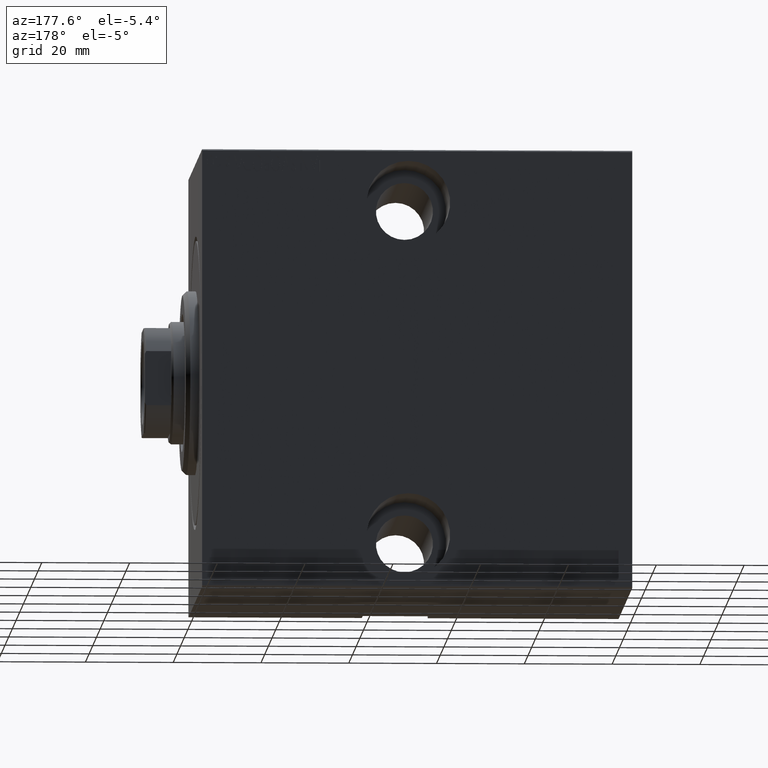
[diagram: clean part render]
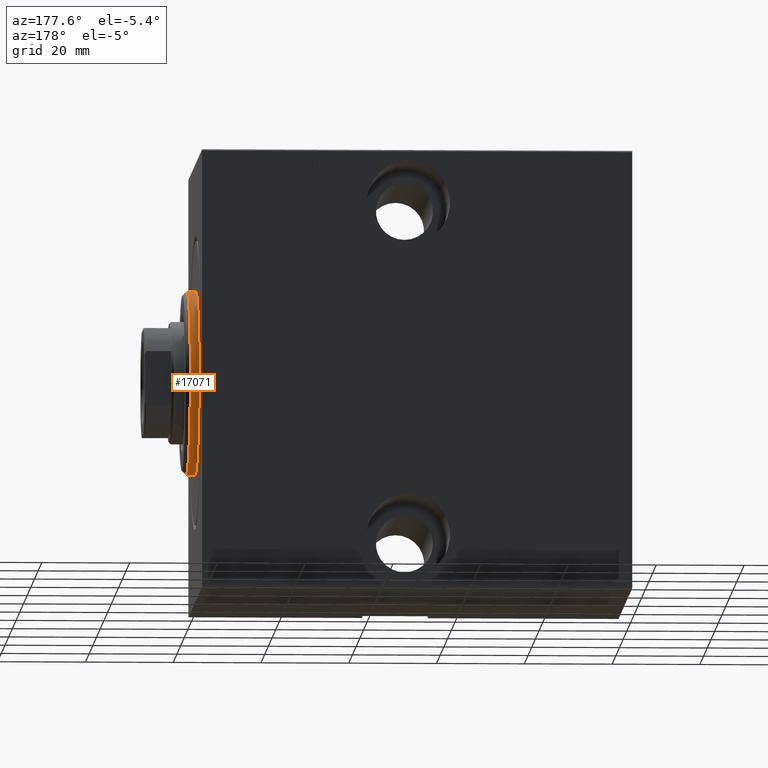
[diagram: same view with one face highlighted and labeled with its STEP entity id]
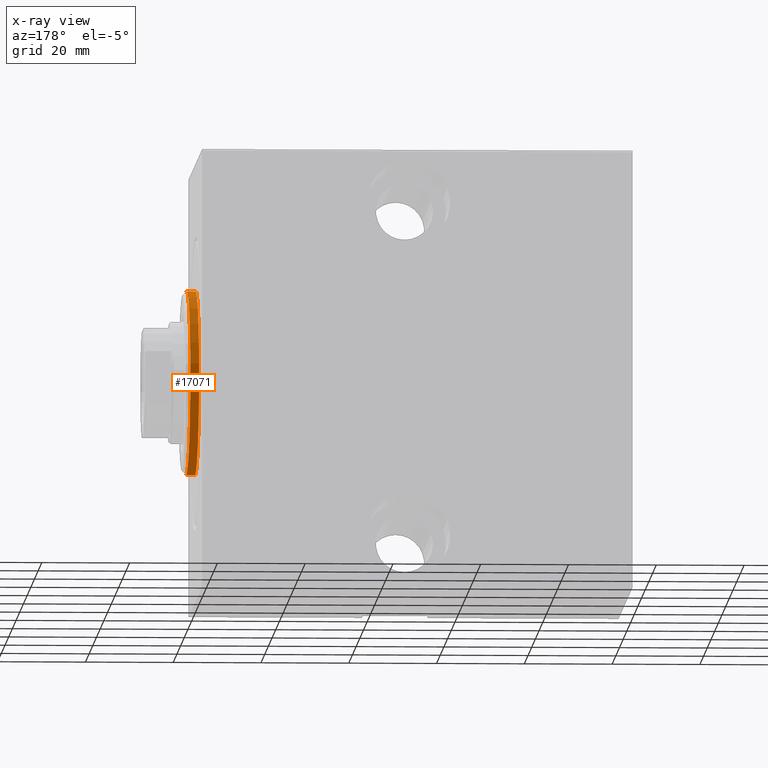
[diagram: x-ray of the same camera — body ghosted, the highlighted face saturated]
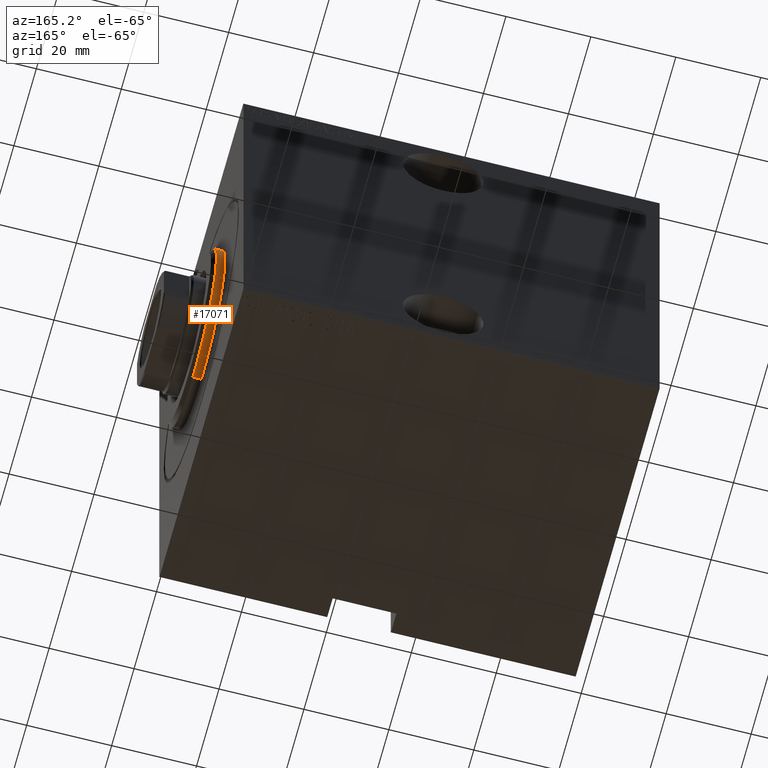
[diagram: same view with one face highlighted and labeled with its STEP entity id]
A machine part, auxiliary view. The second image highlights one B-rep face of the part: STEP entity #17071.
The next image is the same camera in x-ray: the body ghosted, the highlighted face saturated — about 0% of this face is hidden behind the body in this view.
A second angle (auxiliary view) of the same face is appended — the face is thin or edge-on in the first view.
In plain terms, the highlighted cylindrical surface (partial cylindrical patch) has radius 21 mm, axis along (-1, -0, -0).
Its self-contained STEP definition (entity closure, byte-faithful):
#1606 = CARTESIAN_POINT ( 'NONE',  ( 1.999999999999995781, 0.000000000000000000, 21.00000000000000000 ) ) ;
#3739 = FACE_OUTER_BOUND ( 'NONE', #29445, .T. ) ;
#3936 = CARTESIAN_POINT ( 'NONE',  ( 3.000000000000000000, 0.000000000000000000, 21.00000000000000000 ) ) ;
#4202 = CIRCLE ( 'NONE', #16694, 21.00000000000000000 ) ;
#4960 = CARTESIAN_POINT ( 'NONE',  ( 3.000000000000000000, 2.571758278209441661E-15, -21.00000000000000000 ) ) ;
#5844 = DIRECTION ( 'NONE',  ( 0.000000000000000000, 0.000000000000000000, -1.000000000000000000 ) ) ;
#6239 = VERTEX_POINT ( 'NONE', #28555 ) ;
#7049 = ORIENTED_EDGE ( 'NONE', *, *, #35359, .F. ) ;
#9623 = CARTESIAN_POINT ( 'NONE',  ( 3.000000000000000000, 0.000000000000000000, 0.000000000000000000 ) ) ;
#9760 = CARTESIAN_POINT ( 'NONE',  ( 1.999999999999995781, 0.000000000000000000, 0.000000000000000000 ) ) ;
#10269 = DIRECTION ( 'NONE',  ( 0.000000000000000000, 0.000000000000000000, 1.000000000000000000 ) ) ;
#10568 = EDGE_CURVE ( 'NONE', #12131, #6239, #4202, .T. ) ;
#11223 = EDGE_CURVE ( 'NONE', #40612, #36296, #18800, .T. ) ;
#11471 = LINE ( 'NONE', #4960, #31003 ) ;
#11773 = ORIENTED_EDGE ( 'NONE', *, *, #10568, .T. ) ;
#12131 = VERTEX_POINT ( 'NONE', #1606 ) ;
#13314 = CYLINDRICAL_SURFACE ( 'NONE', #23909, 21.00000000000000000 ) ;
#16694 = AXIS2_PLACEMENT_3D ( 'NONE', #9760, #19746, #5844 ) ;
#17071 = ADVANCED_FACE ( 'NONE', ( #3739 ), #13314, .T. ) ;
#18800 = CIRCLE ( 'NONE', #36164, 21.00000000000000000 ) ;
#19746 = DIRECTION ( 'NONE',  ( -1.000000000000000000, 0.000000000000000000, 0.000000000000000000 ) ) ;
#19753 = VECTOR ( 'NONE', #33272, 1000.000000000000000 ) ;
#22323 = EDGE_CURVE ( 'NONE', #6239, #40612, #11471, .T. ) ;
#23722 = LINE ( 'NONE', #3936, #19753 ) ;
#23909 = AXIS2_PLACEMENT_3D ( 'NONE', #9623, #40245, #10269 ) ;
#28555 = CARTESIAN_POINT ( 'NONE',  ( 1.999999999999995781, 2.571758278209441661E-15, -21.00000000000000000 ) ) ;
#29063 = CARTESIAN_POINT ( 'NONE',  ( 0.000000000000000000, 2.571758278209441661E-15, -21.00000000000000000 ) ) ;
#29445 = EDGE_LOOP ( 'NONE', ( #11773, #29627, #36125, #7049 ) ) ;
#29627 = ORIENTED_EDGE ( 'NONE', *, *, #22323, .T. ) ;
#30941 = CARTESIAN_POINT ( 'NONE',  ( 0.000000000000000000, 0.000000000000000000, 0.000000000000000000 ) ) ;
#31003 = VECTOR ( 'NONE', #41435, 1000.000000000000000 ) ;
#31360 = DIRECTION ( 'NONE',  ( 1.000000000000000000, -0.000000000000000000, 0.000000000000000000 ) ) ;
#33272 = DIRECTION ( 'NONE',  ( -1.000000000000000000, -0.000000000000000000, -0.000000000000000000 ) ) ;
#34616 = DIRECTION ( 'NONE',  ( 0.000000000000000000, 0.000000000000000000, -1.000000000000000000 ) ) ;
#35359 = EDGE_CURVE ( 'NONE', #12131, #36296, #23722, .T. ) ;
#36125 = ORIENTED_EDGE ( 'NONE', *, *, #11223, .T. ) ;
#36164 = AXIS2_PLACEMENT_3D ( 'NONE', #30941, #31360, #34616 ) ;
#36296 = VERTEX_POINT ( 'NONE', #39526 ) ;
#39526 = CARTESIAN_POINT ( 'NONE',  ( 0.000000000000000000, 0.000000000000000000, 21.00000000000000000 ) ) ;
#40245 = DIRECTION ( 'NONE',  ( -1.000000000000000000, -0.000000000000000000, -0.000000000000000000 ) ) ;
#40612 = VERTEX_POINT ( 'NONE', #29063 ) ;
#41435 = DIRECTION ( 'NONE',  ( -1.000000000000000000, -0.000000000000000000, -0.000000000000000000 ) ) ;